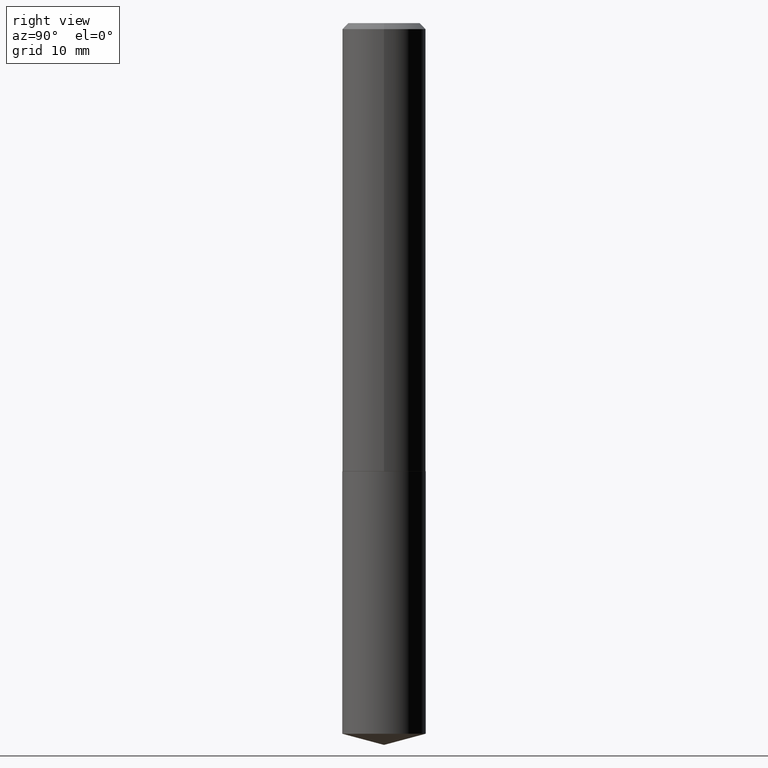
[diagram: clean part render]
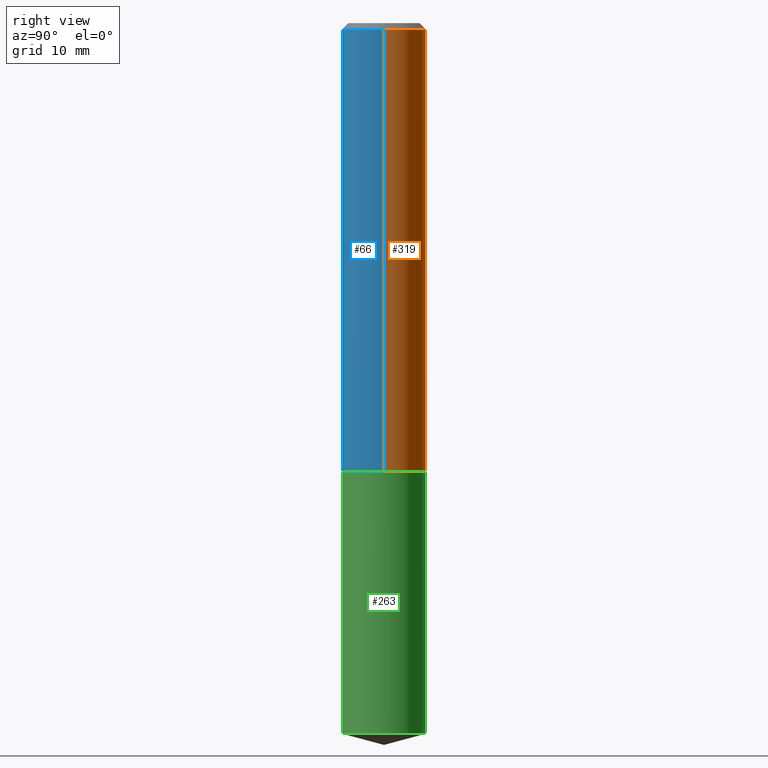
[diagram: same view with three faces highlighted in distinct colors, each labeled with its STEP entity id]
A machine part, right view with three faces highlighted in distinct colors.
Their STEP definitions:

[orange] entity #319 — the highlighted cylindrical surface (partial cylindrical patch) has radius 5.5004 mm, axis along (-0, 0, 1).
#2 = VERTEX_POINT ( 'NONE', #130 ) ;
#14 = VERTEX_POINT ( 'NONE', #153 ) ;
#32 = ORIENTED_EDGE ( 'NONE', *, *, #303, .F. ) ;
#39 = ORIENTED_EDGE ( 'NONE', *, *, #217, .T. ) ;
#50 = DIRECTION ( 'NONE',  ( 1.000000000000000000, -6.982962677686269866E-15, 0.000000000000000000 ) ) ;
#76 = CIRCLE ( 'NONE', #82, 0.2165500000000000203 ) ;
#79 = EDGE_CURVE ( 'NONE', #232, #101, #215, .T. ) ;
#80 = DIRECTION ( 'NONE',  ( -2.445468806185136877E-29, 3.491481338843145188E-15, 1.000000000000000000 ) ) ;
#81 = CARTESIAN_POINT ( 'NONE',  ( 0.2165500000000002701, -9.620776829182285610E-15, -2.322400000000000464 ) ) ;
#82 = AXIS2_PLACEMENT_3D ( 'NONE', #355, #176, #292 ) ;
#97 = EDGE_CURVE ( 'NONE', #232, #2, #336, .T. ) ;
#101 = VERTEX_POINT ( 'NONE', #252 ) ;
#130 = CARTESIAN_POINT ( 'NONE',  ( -0.2165500000000002701, -6.569935967040822957E-15, -2.322400000000000464 ) ) ;
#136 = DIRECTION ( 'NONE',  ( -2.445468806185136597E-29, 3.491481338843145583E-15, 1.000000000000000000 ) ) ;
#141 = CYLINDRICAL_SURFACE ( 'NONE', #329, 0.2165500000000001590 ) ;
#143 = FACE_OUTER_BOUND ( 'NONE', #371, .T. ) ;
#153 = CARTESIAN_POINT ( 'NONE',  ( -0.2165500000000000203, -2.570182232295586298E-15, -0.03125000000000019429 ) ) ;
#165 = CARTESIAN_POINT ( 'NONE',  ( -0.2165500000000001590, 1.538680294288498082E-15, -1.065195393794700623E-29 ) ) ;
#174 = CARTESIAN_POINT ( 'NONE',  ( 0.000000000000000000, 0.000000000000000000, 0.000000000000000000 ) ) ;
#176 = DIRECTION ( 'NONE',  ( -2.445468806185136597E-29, 3.491481338843145583E-15, 1.000000000000000000 ) ) ;
#185 = CARTESIAN_POINT ( 'NONE',  ( 0.2165500000000001590, -1.512160567852962203E-15, 1.055936080798610736E-29 ) ) ;
#193 = DIRECTION ( 'NONE',  ( -2.445468806185136877E-29, 3.491481338843145188E-15, 1.000000000000000000 ) ) ;
#215 = LINE ( 'NONE', #185, #282 ) ;
#217 = EDGE_CURVE ( 'NONE', #2, #14, #256, .T. ) ;
#232 = VERTEX_POINT ( 'NONE', #81 ) ;
#252 = CARTESIAN_POINT ( 'NONE',  ( 0.2165500000000000203, -1.621269359691810318E-15, -0.03125000000000019429 ) ) ;
#256 = LINE ( 'NONE', #165, #262 ) ;
#258 = DIRECTION ( 'NONE',  ( -2.445468806185136597E-29, 3.491481338843145583E-15, 1.000000000000000000 ) ) ;
#262 = VECTOR ( 'NONE', #193, 39.37007874015748143 ) ;
#282 = VECTOR ( 'NONE', #80, 39.37007874015748143 ) ;
#284 = CARTESIAN_POINT ( 'NONE',  ( 5.679356755484362262E-29, -8.108616261329323209E-15, -2.322400000000000464 ) ) ;
#292 = DIRECTION ( 'NONE',  ( 1.000000000000000000, -6.982962677686266711E-15, 0.000000000000000000 ) ) ;
#293 = ORIENTED_EDGE ( 'NONE', *, *, #97, .T. ) ;
#303 = EDGE_CURVE ( 'NONE', #101, #14, #76, .T. ) ;
#319 = ADVANCED_FACE ( 'NONE', ( #143 ), #141, .T. ) ;
#327 = DIRECTION ( 'NONE',  ( 1.000000000000000000, -6.982962677686266711E-15, 4.876176775795936353E-29 ) ) ;
#329 = AXIS2_PLACEMENT_3D ( 'NONE', #174, #258, #327 ) ;
#336 = CIRCLE ( 'NONE', #338, 0.2165500000000002701 ) ;
#338 = AXIS2_PLACEMENT_3D ( 'NONE', #284, #136, #50 ) ;
#355 = CARTESIAN_POINT ( 'NONE',  ( 7.642090019328598283E-31, -1.091087918388489651E-16, -0.03125000000000019429 ) ) ;
#356 = ORIENTED_EDGE ( 'NONE', *, *, #79, .F. ) ;
#371 = EDGE_LOOP ( 'NONE', ( #293, #39, #32, #356 ) ) ;

[blue] entity #66 — the highlighted cylindrical surface (partial cylindrical patch) has radius 5.5004 mm, axis along (-0, 0, 1).
#2 = VERTEX_POINT ( 'NONE', #130 ) ;
#11 = FACE_OUTER_BOUND ( 'NONE', #233, .T. ) ;
#14 = VERTEX_POINT ( 'NONE', #153 ) ;
#16 = DIRECTION ( 'NONE',  ( -2.445468806185136597E-29, 3.491481338843145583E-15, 1.000000000000000000 ) ) ;
#30 = EDGE_CURVE ( 'NONE', #2, #232, #378, .T. ) ;
#66 = ADVANCED_FACE ( 'NONE', ( #11 ), #241, .T. ) ;
#79 = EDGE_CURVE ( 'NONE', #232, #101, #215, .T. ) ;
#80 = DIRECTION ( 'NONE',  ( -2.445468806185136877E-29, 3.491481338843145188E-15, 1.000000000000000000 ) ) ;
#81 = CARTESIAN_POINT ( 'NONE',  ( 0.2165500000000002701, -9.620776829182285610E-15, -2.322400000000000464 ) ) ;
#95 = ORIENTED_EDGE ( 'NONE', *, *, #79, .T. ) ;
#101 = VERTEX_POINT ( 'NONE', #252 ) ;
#102 = AXIS2_PLACEMENT_3D ( 'NONE', #310, #16, #128 ) ;
#127 = DIRECTION ( 'NONE',  ( 1.000000000000000000, -6.982962677686266711E-15, 4.876176775795936353E-29 ) ) ;
#128 = DIRECTION ( 'NONE',  ( 1.000000000000000000, -6.982962677686269866E-15, 0.000000000000000000 ) ) ;
#130 = CARTESIAN_POINT ( 'NONE',  ( -0.2165500000000002701, -6.569935967040822957E-15, -2.322400000000000464 ) ) ;
#142 = ORIENTED_EDGE ( 'NONE', *, *, #217, .F. ) ;
#150 = EDGE_CURVE ( 'NONE', #14, #101, #166, .T. ) ;
#151 = ORIENTED_EDGE ( 'NONE', *, *, #30, .T. ) ;
#153 = CARTESIAN_POINT ( 'NONE',  ( -0.2165500000000000203, -2.570182232295586298E-15, -0.03125000000000019429 ) ) ;
#154 = AXIS2_PLACEMENT_3D ( 'NONE', #382, #223, #352 ) ;
#158 = CARTESIAN_POINT ( 'NONE',  ( 0.000000000000000000, 0.000000000000000000, 0.000000000000000000 ) ) ;
#165 = CARTESIAN_POINT ( 'NONE',  ( -0.2165500000000001590, 1.538680294288498082E-15, -1.065195393794700623E-29 ) ) ;
#166 = CIRCLE ( 'NONE', #154, 0.2165500000000000203 ) ;
#185 = CARTESIAN_POINT ( 'NONE',  ( 0.2165500000000001590, -1.512160567852962203E-15, 1.055936080798610736E-29 ) ) ;
#193 = DIRECTION ( 'NONE',  ( -2.445468806185136877E-29, 3.491481338843145188E-15, 1.000000000000000000 ) ) ;
#212 = AXIS2_PLACEMENT_3D ( 'NONE', #158, #248, #127 ) ;
#215 = LINE ( 'NONE', #185, #282 ) ;
#217 = EDGE_CURVE ( 'NONE', #2, #14, #256, .T. ) ;
#223 = DIRECTION ( 'NONE',  ( -2.445468806185136597E-29, 3.491481338843145583E-15, 1.000000000000000000 ) ) ;
#232 = VERTEX_POINT ( 'NONE', #81 ) ;
#233 = EDGE_LOOP ( 'NONE', ( #142, #151, #95, #296 ) ) ;
#241 = CYLINDRICAL_SURFACE ( 'NONE', #212, 0.2165500000000001590 ) ;
#248 = DIRECTION ( 'NONE',  ( -2.445468806185136597E-29, 3.491481338843145583E-15, 1.000000000000000000 ) ) ;
#252 = CARTESIAN_POINT ( 'NONE',  ( 0.2165500000000000203, -1.621269359691810318E-15, -0.03125000000000019429 ) ) ;
#256 = LINE ( 'NONE', #165, #262 ) ;
#262 = VECTOR ( 'NONE', #193, 39.37007874015748143 ) ;
#282 = VECTOR ( 'NONE', #80, 39.37007874015748143 ) ;
#296 = ORIENTED_EDGE ( 'NONE', *, *, #150, .F. ) ;
#310 = CARTESIAN_POINT ( 'NONE',  ( 5.679356755484362262E-29, -8.108616261329323209E-15, -2.322400000000000464 ) ) ;
#352 = DIRECTION ( 'NONE',  ( 1.000000000000000000, -6.982962677686266711E-15, 0.000000000000000000 ) ) ;
#378 = CIRCLE ( 'NONE', #102, 0.2165500000000002701 ) ;
#382 = CARTESIAN_POINT ( 'NONE',  ( 7.642090019328598283E-31, -1.091087918388489651E-16, -0.03125000000000019429 ) ) ;

[green] entity #263 — the highlighted cylindrical surface (partial cylindrical patch) has radius 5.5004 mm, axis along (-0, 0, 1).
#4 = CYLINDRICAL_SURFACE ( 'NONE', #379, 0.2165500000000000203 ) ;
#25 = CARTESIAN_POINT ( 'NONE',  ( 5.680579489887453942E-29, -8.110362001998743924E-15, -2.322900000000000187 ) ) ;
#27 = VECTOR ( 'NONE', #322, 39.37007874015748143 ) ;
#31 = DIRECTION ( 'NONE',  ( -6.982962677686265133E-15, -1.000000000000000000, 2.523064413451178124E-15 ) ) ;
#34 = ORIENTED_EDGE ( 'NONE', *, *, #380, .F. ) ;
#52 = CARTESIAN_POINT ( 'NONE',  ( 1.538680294288586829E-15, 0.2165499999999918879, -2.322900000000001075 ) ) ;
#62 = CARTESIAN_POINT ( 'NONE',  ( 5.680579489887453942E-29, -8.110362001998743924E-15, -2.322900000000000187 ) ) ;
#63 = VERTEX_POINT ( 'NONE', #274 ) ;
#69 = VERTEX_POINT ( 'NONE', #369 ) ;
#84 = ORIENTED_EDGE ( 'NONE', *, *, #159, .T. ) ;
#111 = CIRCLE ( 'NONE', #283, 0.2165500000000000203 ) ;
#112 = DIRECTION ( 'NONE',  ( -2.445591930395119820E-29, 3.491305017966654254E-15, 1.000000000000000000 ) ) ;
#140 = VECTOR ( 'NONE', #112, 39.37007874015748143 ) ;
#159 = EDGE_CURVE ( 'NONE', #69, #183, #288, .T. ) ;
#175 = ORIENTED_EDGE ( 'NONE', *, *, #331, .T. ) ;
#183 = VERTEX_POINT ( 'NONE', #52 ) ;
#203 = FACE_OUTER_BOUND ( 'NONE', #208, .T. ) ;
#206 = DIRECTION ( 'NONE',  ( -6.982962677686265133E-15, -1.000000000000000000, 3.784596620176766988E-15 ) ) ;
#208 = EDGE_LOOP ( 'NONE', ( #175, #84, #335, #34 ) ) ;
#224 = CARTESIAN_POINT ( 'NONE',  ( 1.538680294288553500E-15, 0.2165499999999918879, -2.322900000000001075 ) ) ;
#238 = CARTESIAN_POINT ( 'NONE',  ( 9.004812934248602542E-29, -1.285600773338433717E-14, -3.682175602379041734 ) ) ;
#242 = CIRCLE ( 'NONE', #323, 0.2165500000000000203 ) ;
#253 = EDGE_CURVE ( 'NONE', #341, #183, #111, .T. ) ;
#263 = ADVANCED_FACE ( 'NONE', ( #203 ), #4, .T. ) ;
#266 = DIRECTION ( 'NONE',  ( -2.445591930395119820E-29, 3.491305017966654649E-15, 1.000000000000000000 ) ) ;
#274 = CARTESIAN_POINT ( 'NONE',  ( -1.512160567852871090E-15, -0.2165500000000128711, -3.682175602379041290 ) ) ;
#283 = AXIS2_PLACEMENT_3D ( 'NONE', #62, #266, #206 ) ;
#288 = LINE ( 'NONE', #224, #27 ) ;
#298 = DIRECTION ( 'NONE',  ( -6.982962677686265133E-15, -1.000000000000000000, 3.784596620176766988E-15 ) ) ;
#322 = DIRECTION ( 'NONE',  ( -2.445591930395119820E-29, 3.491305017966654254E-15, 1.000000000000000000 ) ) ;
#323 = AXIS2_PLACEMENT_3D ( 'NONE', #238, #328, #31 ) ;
#328 = DIRECTION ( 'NONE',  ( -2.445591930395119820E-29, 3.491305017966654649E-15, 1.000000000000000000 ) ) ;
#331 = EDGE_CURVE ( 'NONE', #63, #69, #242, .T. ) ;
#333 = CARTESIAN_POINT ( 'NONE',  ( -1.512160567852904222E-15, -0.2165500000000081249, -2.322899999999999299 ) ) ;
#335 = ORIENTED_EDGE ( 'NONE', *, *, #253, .F. ) ;
#341 = VERTEX_POINT ( 'NONE', #384 ) ;
#358 = DIRECTION ( 'NONE',  ( -2.445591930395119820E-29, 3.491305017966654649E-15, 1.000000000000000000 ) ) ;
#363 = LINE ( 'NONE', #333, #140 ) ;
#369 = CARTESIAN_POINT ( 'NONE',  ( 1.538680294288587027E-15, 0.2165499999999871972, -3.682175602379042179 ) ) ;
#379 = AXIS2_PLACEMENT_3D ( 'NONE', #25, #358, #298 ) ;
#380 = EDGE_CURVE ( 'NONE', #63, #341, #363, .T. ) ;
#384 = CARTESIAN_POINT ( 'NONE',  ( -1.512160567852904222E-15, -0.2165500000000081249, -2.322899999999999299 ) ) ;